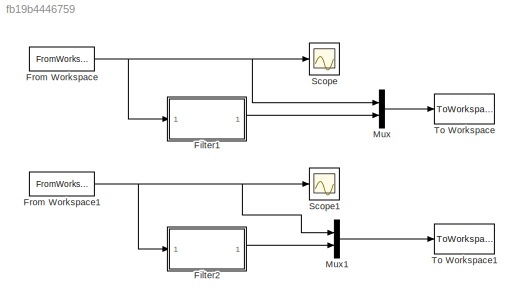
MODEL slx_fb19b4446759
KIND model
CONFIG AbsTol = auto
CONFIG EnableMultiTasking = off
CONFIG FixedStep = auto
CONFIG MaxStep = auto
CONFIG MinStep = auto
CONFIG RelTol = 1e-3
CONFIG SampleTimeConstraint = Unconstrained
CONFIG Solver = VariableStepAuto
CONFIG SolverName = VariableStepAuto
CONFIG StartTime = 0.0
CONFIG StopTime = 20
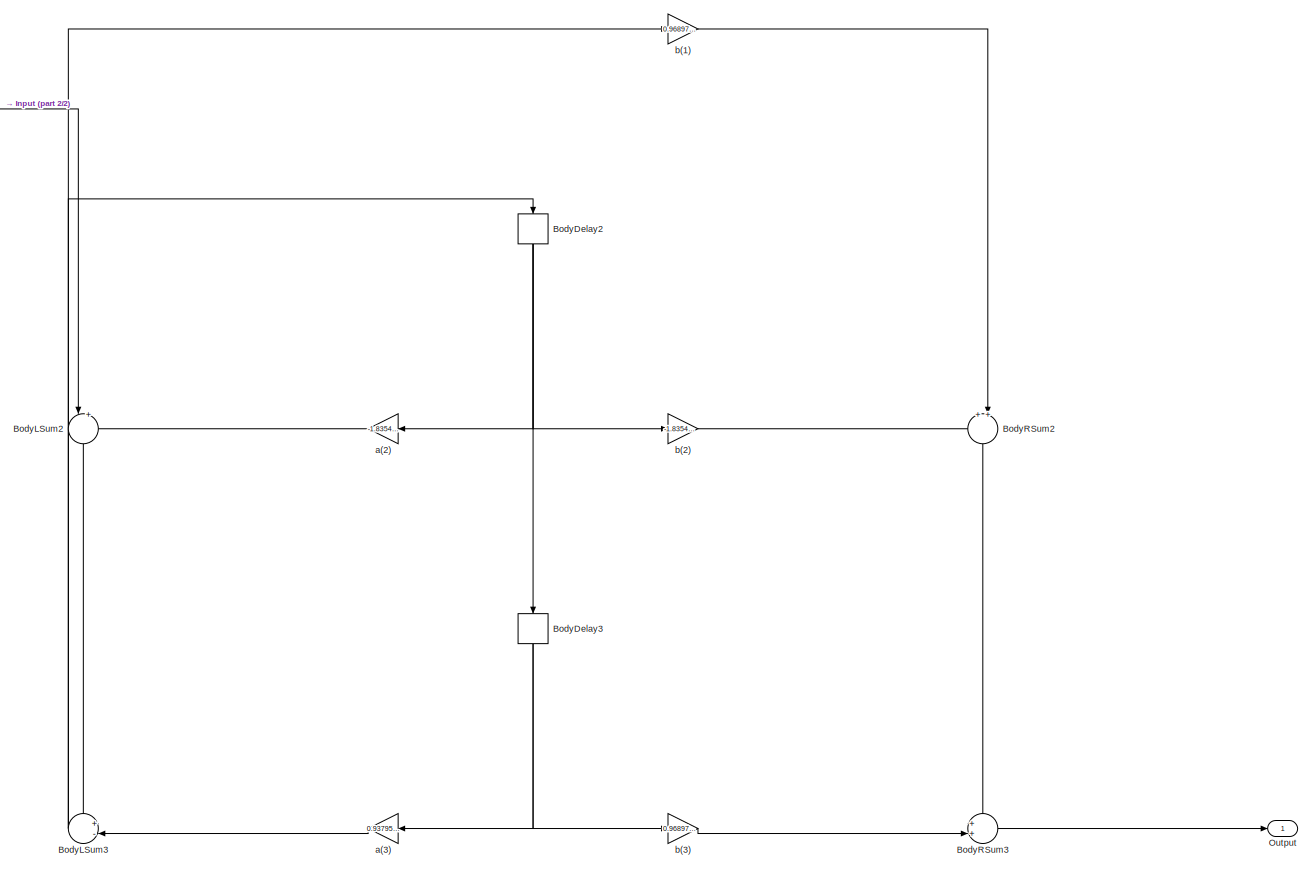
[diagram: Filter1 - part 1/2, most of the canvas]
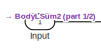
[diagram: Filter1 - part 2/2, top left region]
BLOCK [SubSystem] Filter1
  ErrorFcn = dspFilterRealizedInBasicElemsAlgLoopErrFcnCallback
  Ports = [1, 1]
  RequestExecContextInheritance = off
  Tag = FilterWizardSubSystem
  UserDataPersistent = on
  Variant = off
BLOCK [Delay] Filter1/BodyDelay2
  DelayLength = 1
  InitialCondition = 0
  InputPortMap = u0
  Ports = [1, 1]
BLOCK [Delay] Filter1/BodyDelay3
  DelayLength = 1
  InitialCondition = 0
  InputPortMap = u0
  Ports = [1, 1]
BLOCK [Sum] Filter1/BodyLSum2
  IconShape = round
  InputSameDT = off
  Inputs = |+-
  Ports = [2, 1]
  RndMeth = Nearest
BLOCK [Sum] Filter1/BodyLSum3
  IconShape = round
  InputSameDT = off
  Inputs = +-|
  Ports = [2, 1]
  RndMeth = Nearest
BLOCK [Sum] Filter1/BodyRSum2
  IconShape = round
  InputSameDT = off
  Inputs = ++|
  Ports = [2, 1]
  RndMeth = Nearest
BLOCK [Sum] Filter1/BodyRSum3
  IconShape = round
  InputSameDT = off
  Inputs = ++|
  Ports = [2, 1]
  RndMeth = Nearest
BLOCK [Inport] Filter1/Input
  IconDisplay = Port number
BLOCK [Outport] Filter1/Output
  IconDisplay = Port number
BLOCK [Gain] Filter1/a(2)
  Gain = -1.8354370236567983
  ParamDataTypeStr = double
  RndMeth = Nearest
BLOCK [Gain] Filter1/a(3)
  Gain = 0.93795830272020542
  ParamDataTypeStr = double
  RndMeth = Nearest
BLOCK [Gain] Filter1/b(1)
  Gain = 0.96897915136010271
  ParamDataTypeStr = double
  RndMeth = Nearest
BLOCK [Gain] Filter1/b(2)
  Gain = -1.8354370236567983
  ParamDataTypeStr = double
  RndMeth = Nearest
BLOCK [Gain] Filter1/b(3)
  Gain = 0.96897915136010271
  ParamDataTypeStr = double
  RndMeth = Nearest
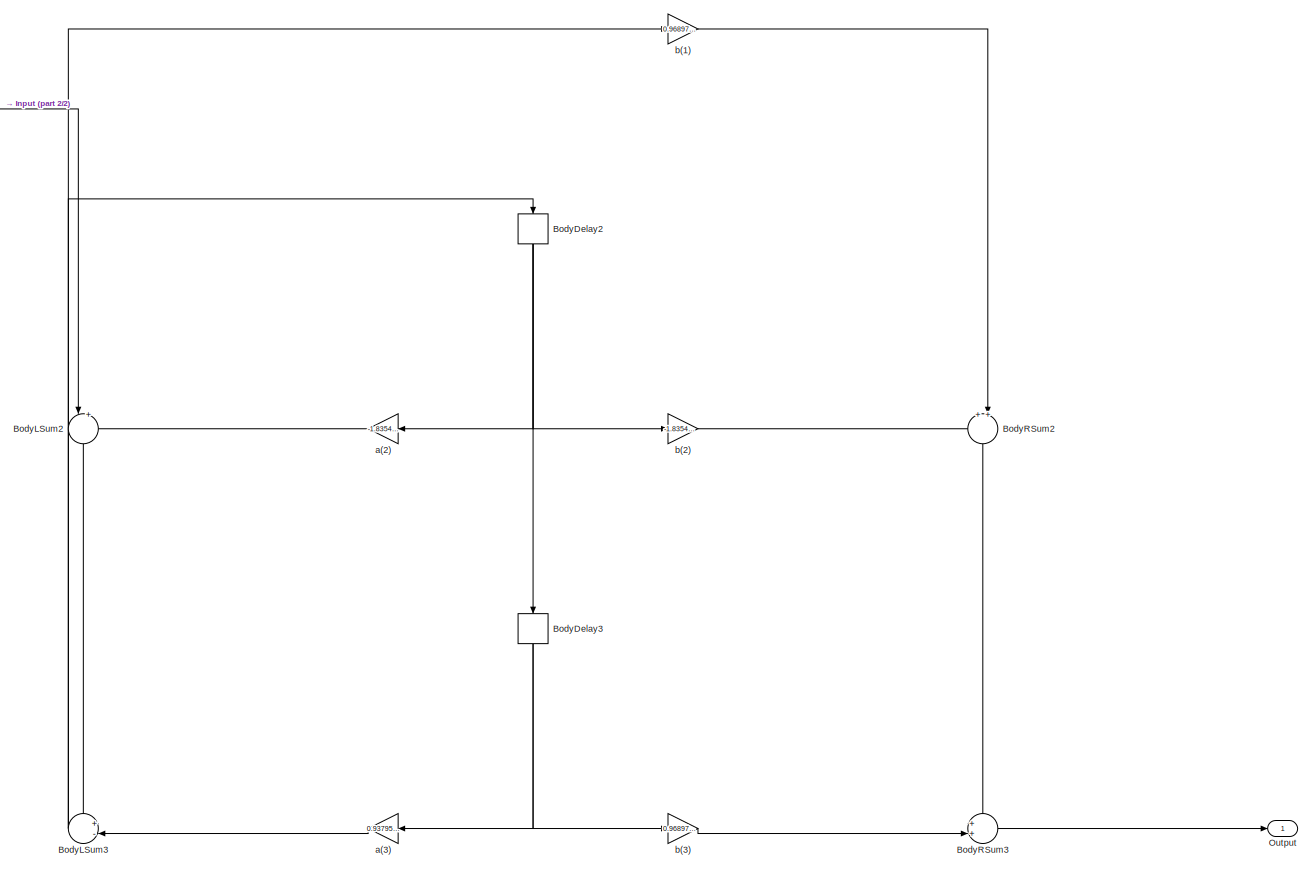
[diagram: Filter2 - part 1/2, most of the canvas]
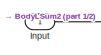
[diagram: Filter2 - part 2/2, top left region]
BLOCK [SubSystem] Filter2
  ErrorFcn = dspFilterRealizedInBasicElemsAlgLoopErrFcnCallback
  Ports = [1, 1]
  RequestExecContextInheritance = off
  Tag = FilterWizardSubSystem
  UserDataPersistent = on
  Variant = off
BLOCK [Delay] Filter2/BodyDelay2
  DelayLength = 1
  InitialCondition = 0
  InputPortMap = u0
  Ports = [1, 1]
BLOCK [Delay] Filter2/BodyDelay3
  DelayLength = 1
  InitialCondition = 0
  InputPortMap = u0
  Ports = [1, 1]
BLOCK [Sum] Filter2/BodyLSum2
  IconShape = round
  InputSameDT = off
  Inputs = |+-
  Ports = [2, 1]
  RndMeth = Nearest
BLOCK [Sum] Filter2/BodyLSum3
  IconShape = round
  InputSameDT = off
  Inputs = +-|
  Ports = [2, 1]
  RndMeth = Nearest
BLOCK [Sum] Filter2/BodyRSum2
  IconShape = round
  InputSameDT = off
  Inputs = ++|
  Ports = [2, 1]
  RndMeth = Nearest
BLOCK [Sum] Filter2/BodyRSum3
  IconShape = round
  InputSameDT = off
  Inputs = ++|
  Ports = [2, 1]
  RndMeth = Nearest
BLOCK [Inport] Filter2/Input
  IconDisplay = Port number
BLOCK [Outport] Filter2/Output
  IconDisplay = Port number
BLOCK [Gain] Filter2/a(2)
  Gain = -1.8354370236567983
  ParamDataTypeStr = double
  RndMeth = Nearest
BLOCK [Gain] Filter2/a(3)
  Gain = 0.93795830272020542
  ParamDataTypeStr = double
  RndMeth = Nearest
BLOCK [Gain] Filter2/b(1)
  Gain = 0.96897915136010271
  ParamDataTypeStr = double
  RndMeth = Nearest
BLOCK [Gain] Filter2/b(2)
  Gain = -1.8354370236567983
  ParamDataTypeStr = double
  RndMeth = Nearest
BLOCK [Gain] Filter2/b(3)
  Gain = 0.96897915136010271
  ParamDataTypeStr = double
  RndMeth = Nearest
BLOCK [FromWorkspace] From Workspace
  OutputAfterFinalValue = Setting to zero
  SampleTime = 0.001
  VariableName = g1_sim
  ZeroCross = on
BLOCK [FromWorkspace] From Workspace1
  OutputAfterFinalValue = Setting to zero
  SampleTime = 0.001
  VariableName = g2_sim
  ZeroCross = on
BLOCK [Mux] Mux
  DisplayOption = bar
  Inputs = 2
  Ports = [2, 1]
BLOCK [Mux] Mux1
  DisplayOption = bar
  Inputs = 2
  Ports = [2, 1]
BLOCK [Scope] Scope
  NumInputPorts = 1
  Ports = [1]
  ScopeSpecificationString = Simulink.scopes.TimeScopeBlockCfg('CurrentConfiguration', extmgr.ConfigurationSet(extmgr.Configuration('Core','General UI',true),extmgr.Configuration('Core','Source UI',true),extmgr.Configuration('Sources','WiredSimulink',true),extmgr.Configuration('Visuals','Time Domain',true,'SerializedDisplays',{struct('MinYLimReal','-0.01521','MaxYLimReal','0.00533','YLabelReal','','MinYLimMag','0.00000','MaxY...<+1374ch>
BLOCK [Scope] Scope1
  NumInputPorts = 1
  Ports = [1]
  ScopeSpecificationString = Simulink.scopes.TimeScopeBlockCfg('CurrentConfiguration', extmgr.ConfigurationSet(extmgr.Configuration('Core','General UI',true),extmgr.Configuration('Core','Source UI',true),extmgr.Configuration('Sources','WiredSimulink',true,'DataLoggingVariableName','ScopeData1'),extmgr.Configuration('Visuals','Time Domain',true,'SerializedDisplays',{struct('MinYLimReal','-0.01822','MaxYLimReal','0.01601','YLab...<+1416ch>
BLOCK [ToWorkspace] To Workspace
  FixptAsFi = on
  MaxDataPoints = inf
  Ports = [1]
  SampleTime = -1
  Save2DSignal = 3-D array (concatenate along third dimension)
  VariableName = g1out
BLOCK [ToWorkspace] To Workspace1
  FixptAsFi = on
  MaxDataPoints = inf
  Ports = [1]
  SampleTime = -1
  Save2DSignal = 3-D array (concatenate along third dimension)
  VariableName = g2out
NET Filter1/BodyDelay2:1 -> Filter1/BodyDelay3:1, Filter1/a(2):1, Filter1/b(2):1
NET Filter1/BodyDelay3:1 -> Filter1/a(3):1, Filter1/b(3):1
LINE Filter1/BodyLSum2:1 -> Filter1/BodyLSum3:1
NET Filter1/BodyLSum3:1 -> Filter1/BodyDelay2:1, Filter1/b(1):1
LINE Filter1/BodyRSum2:1 -> Filter1/BodyRSum3:1
LINE Filter1/BodyRSum3:1 -> Filter1/Output:1
LINE Filter1/Input:1 -> Filter1/BodyLSum2:1
LINE Filter1/a(2):1 -> Filter1/BodyLSum2:2
LINE Filter1/a(3):1 -> Filter1/BodyLSum3:2
LINE Filter1/b(1):1 -> Filter1/BodyRSum2:2
LINE Filter1/b(2):1 -> Filter1/BodyRSum2:1
LINE Filter1/b(3):1 -> Filter1/BodyRSum3:2
LINE Filter1:1 -> Mux:2
NET Filter2/BodyDelay2:1 -> Filter2/BodyDelay3:1, Filter2/a(2):1, Filter2/b(2):1
NET Filter2/BodyDelay3:1 -> Filter2/a(3):1, Filter2/b(3):1
LINE Filter2/BodyLSum2:1 -> Filter2/BodyLSum3:1
NET Filter2/BodyLSum3:1 -> Filter2/BodyDelay2:1, Filter2/b(1):1
LINE Filter2/BodyRSum2:1 -> Filter2/BodyRSum3:1
LINE Filter2/BodyRSum3:1 -> Filter2/Output:1
LINE Filter2/Input:1 -> Filter2/BodyLSum2:1
LINE Filter2/a(2):1 -> Filter2/BodyLSum2:2
LINE Filter2/a(3):1 -> Filter2/BodyLSum3:2
LINE Filter2/b(1):1 -> Filter2/BodyRSum2:2
LINE Filter2/b(2):1 -> Filter2/BodyRSum2:1
LINE Filter2/b(3):1 -> Filter2/BodyRSum3:2
LINE Filter2:1 -> Mux1:2
NET From Workspace1:1 -> Filter2:1, Mux1:1, Scope1:1
NET From Workspace:1 -> Filter1:1, Mux:1, Scope:1
LINE Mux1:1 -> To Workspace1:1
LINE Mux:1 -> To Workspace:1
note: NET lines group one-source signal fan-out (src -> all destinations, sorted); 1:1 wires keep LINE
